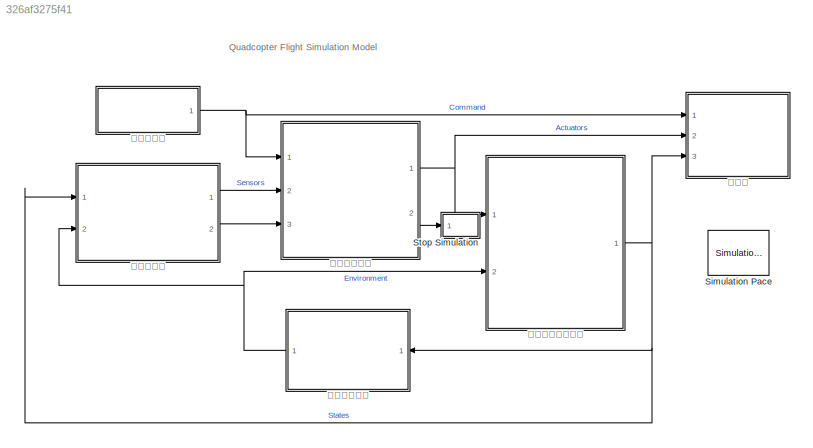
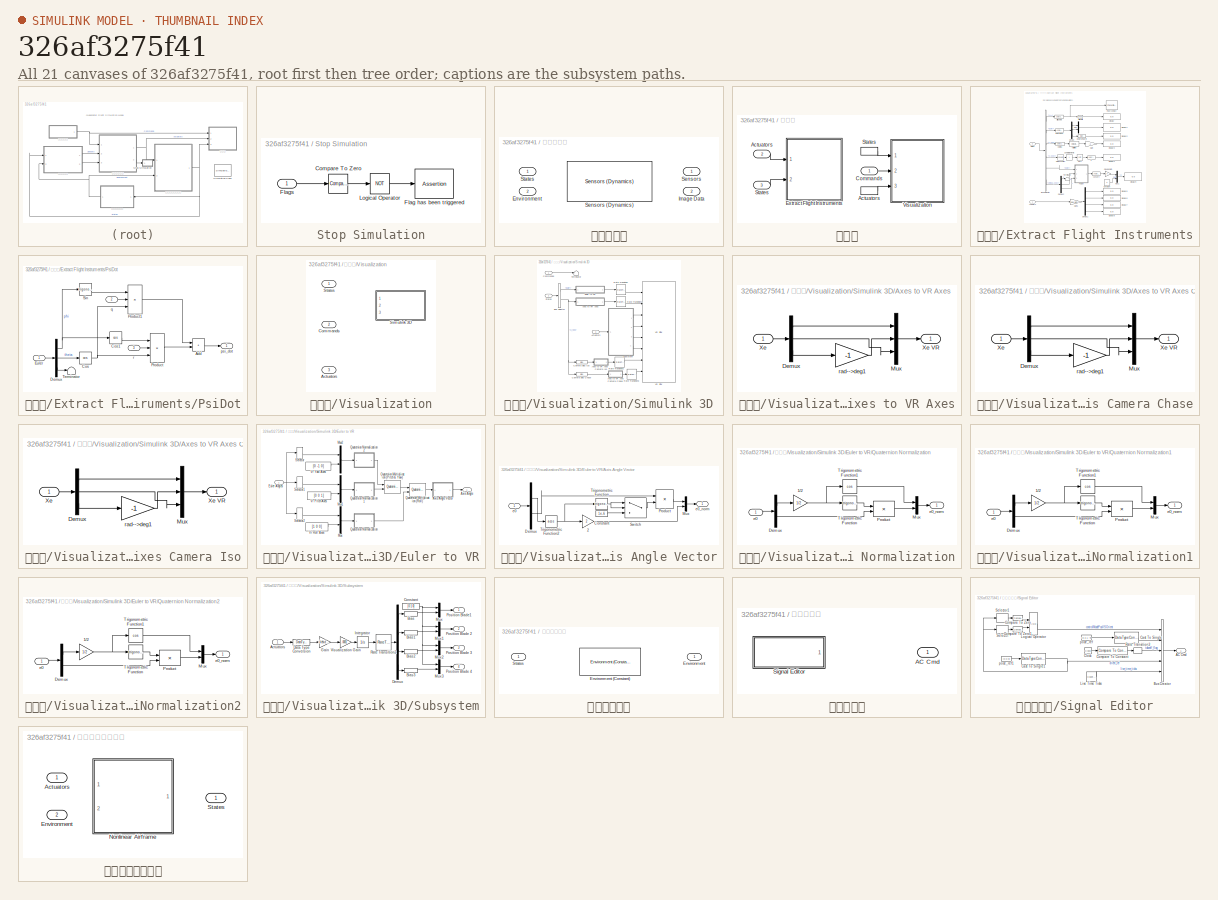
[diagram: thumbnail index - all 21 canvases of the model, root first then tree order]
MODEL slx_326af3275f41
KIND model
CONFIG AbsTol = auto
CONFIG EnableMultiTasking = on
CONFIG FixedStep = Ts
CONFIG MaxStep = auto
CONFIG MinStep = auto
CONFIG RelTol = 1e-3
CONFIG SampleTimeConstraint = Unconstrained
CONFIG SolverName = ode3
CONFIG StartTime = 0
CONFIG StopTime = 60
BLOCK [Reference] Simulation Pace  REF=aerolibanimutils/Simulation Pace
  AttributesFormatString = %<SimulationPace> sec/sec
  Commented = on
  Ports = []
  SourceBlock = aerolibanimutils/Simulation Pace
  SourceProductBaseCode = AE
  SourceType = Simulation Pace
BLOCK [SubSystem] Stop Simulation
  Ports = [1]
  RequestExecContextInheritance = off
BLOCK [Reference] Stop Simulation/Compare To Zero  REF=simulink/Logic and Bit
Operations/Compare
To Zero
  Ports = [1, 1]
  SourceBlock = simulink/Logic and Bit\nOperations/Compare\nTo Zero
  SourceProductBaseCode = SL
  SourceType = Compare To Zero
BLOCK [Assertion] Stop Simulation/Flag has been triggered
BLOCK [Inport] Stop Simulation/Flags
  OutDataTypeStr = uint8
BLOCK [Logic] Stop Simulation/Logical Operator
  AllPortsSameDT = off
  Operator = NOT
  OutDataTypeStr = boolean
  Ports = [1, 1]
BLOCK [SubSystem] 传感器数据
  Ports = [2, 2]
  RequestExecContextInheritance = off
  Variant = on
BLOCK [Inport] 传感器数据/Environment
  Port = 2
BLOCK [Outport] 传感器数据/Image Data
  Port = 2
  VectorParamsAs1DForOutWhenUnconnected = off
BLOCK [Outport] 传感器数据/Sensors
  VectorParamsAs1DForOutWhenUnconnected = off
BLOCK [Reference] 传感器数据/Sensors (Dynamics)  REF=sensorsLibrary/Sensors (Dynamics)
  Ports = [2, 2]
  SourceBlock = sensorsLibrary/Sensors (Dynamics)
BLOCK [Inport] 传感器数据/States
BLOCK [SubSystem] 可视化
  Ports = [3]
  RequestExecContextInheritance = off
BLOCK [Inport] 可视化/Actuators
  Port = 2
BLOCK [InportShadow] 可视化/Actuators 
  Port = 2
BLOCK [Inport] 可视化/Commands
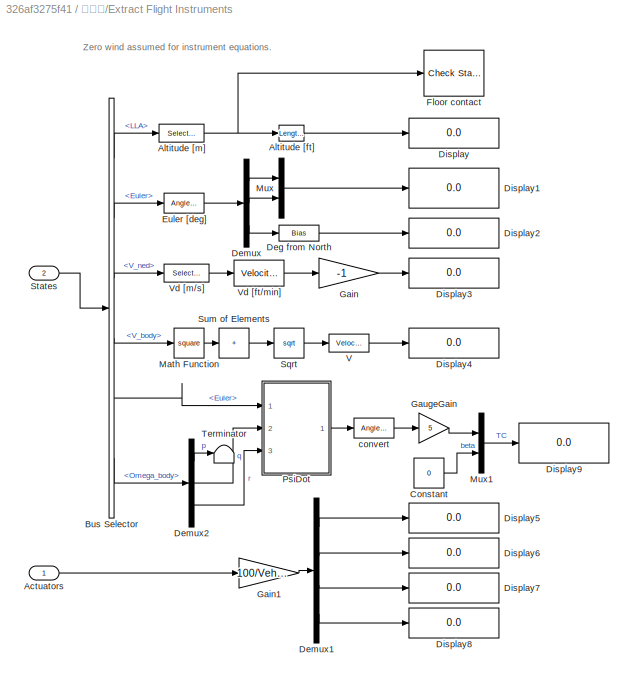
BLOCK [SubSystem] 可视化/Extract Flight Instruments
  Ports = [2]
  RequestExecContextInheritance = off
BLOCK [Inport] 可视化/Extract Flight Instruments/Actuators
BLOCK [Reference] 可视化/Extract Flight Instruments/Altitude [ft]  REF=aerolibconvert2/Length Conversion
  Ports = [1, 1]
  SourceBlock = aerolibconvert2/Length Conversion
  SourceProductBaseCode = AE
  SourceType = Length Conversion
BLOCK [Selector] 可视化/Extract Flight Instruments/Altitude [m]
  IndexOptions = Index vector (dialog)
  Indices = [3]
  InputPortWidth = 3
  OutputSizes = 1
  Ports = [1, 1]
BLOCK [BusSelector] 可视化/Extract Flight Instruments/Bus Selector
  OutputSignals = LLA,Euler,V_ned,V_body,Euler,Omega_body
  Ports = [1, 6]
BLOCK [Constant] 可视化/Extract Flight Instruments/Constant
  Value = 0
BLOCK [Bias] 可视化/Extract Flight Instruments/Deg from North
  Bias = Vehicle.PositionOnEarth.FlatEarthToLLA.xAxis
  SaturateOnIntegerOverflow = off
BLOCK [Demux] 可视化/Extract Flight Instruments/Demux
  Outputs = 3
  Ports = [1, 3]
BLOCK [Demux] 可视化/Extract Flight Instruments/Demux1
  Ports = [1, 4]
BLOCK [Demux] 可视化/Extract Flight Instruments/Demux2
  Outputs = 3
  Ports = [1, 3]
BLOCK [Display] 可视化/Extract Flight Instruments/Display
  Decimation = 1
  Ports = [1]
BLOCK [Display] 可视化/Extract Flight Instruments/Display1
  Decimation = 1
  Ports = [1]
BLOCK [Display] 可视化/Extract Flight Instruments/Display2
  Decimation = 1
  Ports = [1]
BLOCK [Display] 可视化/Extract Flight Instruments/Display3
  Decimation = 1
  Ports = [1]
BLOCK [Display] 可视化/Extract Flight Instruments/Display4
  Decimation = 1
  Ports = [1]
BLOCK [Display] 可视化/Extract Flight Instruments/Display5
  Decimation = 1
  Ports = [1]
BLOCK [Display] 可视化/Extract Flight Instruments/Display6
  Decimation = 1
  Ports = [1]
BLOCK [Display] 可视化/Extract Flight Instruments/Display7
  Decimation = 1
  Ports = [1]
BLOCK [Display] 可视化/Extract Flight Instruments/Display8
  Decimation = 1
  Ports = [1]
BLOCK [Display] 可视化/Extract Flight Instruments/Display9
  Decimation = 1
  Ports = [1]
BLOCK [Reference] 可视化/Extract Flight Instruments/Euler [deg]  REF=aerolibconvert2/Angle Conversion
  Ports = [1, 1]
  SourceBlock = aerolibconvert2/Angle Conversion
  SourceProductBaseCode = AE
  SourceType = Angle Conversion
BLOCK [Reference] 可视化/Extract Flight Instruments/Floor contact  REF=simulink/Model
Verification/Check Static 
Lower Bound
  Description = init.posLLA(3) <= u
  Ports = [1]
  SourceBlock = simulink/Model\nVerification/Check Static \nLower Bound
  SourceProductBaseCode = SL
  SourceType = Checks_SMin
BLOCK [Gain] 可视化/Extract Flight Instruments/Gain
  Gain = -1
BLOCK [Gain] 可视化/Extract Flight Instruments/Gain1
  Gain = 100/Vehicle.Motor.maxLimit*[1 -1 1 -1]
BLOCK [Gain] 可视化/Extract Flight Instruments/GaugeGain
  Gain = 5
BLOCK [Math] 可视化/Extract Flight Instruments/Math Function
  Operator = square
  Ports = [1, 1]
  SignedPower = on
BLOCK [Mux] 可视化/Extract Flight Instruments/Mux
  DisplayOption = bar
  Inputs = 2
  Ports = [2, 1]
BLOCK [Mux] 可视化/Extract Flight Instruments/Mux1
  DisplayOption = bar
  Inputs = 2
  Ports = [2, 1]
BLOCK [SubSystem] 可视化/Extract Flight Instruments/PsiDot
  Ports = [3, 1]
  RequestExecContextInheritance = off
BLOCK [Sum] 可视化/Extract Flight Instruments/PsiDot/Add
  IconShape = rectangular
  Ports = [2, 1]
BLOCK [Trigonometry] 可视化/Extract Flight Instruments/PsiDot/Cos
  Operator = cos
  Ports = [1, 1]
BLOCK [Trigonometry] 可视化/Extract Flight Instruments/PsiDot/Cos1
  Operator = cos
  Ports = [1, 1]
BLOCK [Demux] 可视化/Extract Flight Instruments/PsiDot/Demux
  Outputs = 3
  Ports = [1, 3]
BLOCK [Inport] 可视化/Extract Flight Instruments/PsiDot/Euler
BLOCK [Product] 可视化/Extract Flight Instruments/PsiDot/Product
  Inputs = **/
  Ports = [3, 1]
BLOCK [Product] 可视化/Extract Flight Instruments/PsiDot/Product1
  Inputs = **/
  Ports = [3, 1]
BLOCK [Trigonometry] 可视化/Extract Flight Instruments/PsiDot/Sin
  Ports = [1, 1]
BLOCK [Terminator] 可视化/Extract Flight Instruments/PsiDot/Terminator
BLOCK [Outport] 可视化/Extract Flight Instruments/PsiDot/psi_dot
BLOCK [Inport] 可视化/Extract Flight Instruments/PsiDot/q
  Port = 2
BLOCK [Inport] 可视化/Extract Flight Instruments/PsiDot/r
  Port = 3
BLOCK [Sqrt] 可视化/Extract Flight Instruments/Sqrt
BLOCK [Inport] 可视化/Extract Flight Instruments/States
  Port = 2
BLOCK [Sum] 可视化/Extract Flight Instruments/Sum of Elements
  IconShape = rectangular
  Inputs = +
  Ports = [1, 1]
BLOCK [Terminator] 可视化/Extract Flight Instruments/Terminator
BLOCK [Reference] 可视化/Extract Flight Instruments/V  REF=aerolibconvert2/Velocity Conversion
  Ports = [1, 1]
  SourceBlock = aerolibconvert2/Velocity Conversion
  SourceProductBaseCode = AE
  SourceType = Velocity Conversion
BLOCK [Reference] 可视化/Extract Flight Instruments/Vd [ft//min]  REF=aerolibconvert2/Velocity Conversion
  Ports = [1, 1]
  SourceBlock = aerolibconvert2/Velocity Conversion
  SourceProductBaseCode = AE
  SourceType = Velocity Conversion
BLOCK [Selector] 可视化/Extract Flight Instruments/Vd [m//s]
  IndexOptions = Index vector (dialog)
  Indices = [3]
  InputPortWidth = 3
  OutputSizes = 1
  Ports = [1, 1]
BLOCK [Reference] 可视化/Extract Flight Instruments/convert  REF=aerolibconvert2/Angle Conversion
  Ports = [1, 1]
  SourceBlock = aerolibconvert2/Angle Conversion
  SourceProductBaseCode = AE
  SourceType = Angle Conversion
BLOCK [Inport] 可视化/States
  Port = 3
BLOCK [InportShadow] 可视化/States 
  Port = 3
BLOCK [SubSystem] 可视化/Visualization
  Ports = [3]
  RequestExecContextInheritance = off
  Variant = on
BLOCK [Inport] 可视化/Visualization/Actuators
  Port = 3
BLOCK [Inport] 可视化/Visualization/Commands
  OutDataTypeStr = Bus: CommandBus
  Port = 2
BLOCK [SubSystem] 可视化/Visualization/Simulink 3D
  Ports = [3]
  RequestExecContextInheritance = off
  VariantControl = VSS_VISUALIZATION_SL3D
BLOCK [Inport] 可视化/Visualization/Simulink 3D/Actuators
  Port = 3
BLOCK [SubSystem] 可视化/Visualization/Simulink 3D/Axes to VR Axes
  Ports = [1, 1]
  RequestExecContextInheritance = off
BLOCK [SubSystem] 可视化/Visualization/Simulink 3D/Axes to VR Axes Camera Chase
  Ports = [1, 1]
  RequestExecContextInheritance = off
BLOCK [Demux] 可视化/Visualization/Simulink 3D/Axes to VR Axes Camera Chase/Demux
  DisplayOption = none
  Outputs = 3
  Ports = [1, 3]
BLOCK [Mux] 可视化/Visualization/Simulink 3D/Axes to VR Axes Camera Chase/Mux
  DisplayOption = bar
  Inputs = 3
  Ports = [3, 1]
BLOCK [Inport] 可视化/Visualization/Simulink 3D/Axes to VR Axes Camera Chase/Xe
BLOCK [Outport] 可视化/Visualization/Simulink 3D/Axes to VR Axes Camera Chase/Xe VR
  VectorParamsAs1DForOutWhenUnconnected = off
BLOCK [Gain] 可视化/Visualization/Simulink 3D/Axes to VR Axes Camera Chase/rad-->deg1
  Gain = -1
  NameLocation = top
  OutDataTypeStr = Inherit: Same as input
  ParamDataTypeStr = Inherit: Same as input
  SaturateOnIntegerOverflow = on
BLOCK [SubSystem] 可视化/Visualization/Simulink 3D/Axes to VR Axes Camera Iso
  Ports = [1, 1]
  RequestExecContextInheritance = off
BLOCK [Demux] 可视化/Visualization/Simulink 3D/Axes to VR Axes Camera Iso/Demux
  DisplayOption = none
  Outputs = 3
  Ports = [1, 3]
BLOCK [Mux] 可视化/Visualization/Simulink 3D/Axes to VR Axes Camera Iso/Mux
  DisplayOption = bar
  Inputs = 3
  Ports = [3, 1]
BLOCK [Inport] 可视化/Visualization/Simulink 3D/Axes to VR Axes Camera Iso/Xe
BLOCK [Outport] 可视化/Visualization/Simulink 3D/Axes to VR Axes Camera Iso/Xe VR
  VectorParamsAs1DForOutWhenUnconnected = off
BLOCK [Gain] 可视化/Visualization/Simulink 3D/Axes to VR Axes Camera Iso/rad-->deg1
  Gain = -1
  NameLocation = top
  OutDataTypeStr = Inherit: Same as input
  ParamDataTypeStr = Inherit: Same as input
  SaturateOnIntegerOverflow = on
BLOCK [Demux] 可视化/Visualization/Simulink 3D/Axes to VR Axes/Demux
  DisplayOption = none
  Outputs = 3
  Ports = [1, 3]
BLOCK [Mux] 可视化/Visualization/Simulink 3D/Axes to VR Axes/Mux
  DisplayOption = bar
  Inputs = 3
  Ports = [3, 1]
BLOCK [Inport] 可视化/Visualization/Simulink 3D/Axes to VR Axes/Xe
BLOCK [Outport] 可视化/Visualization/Simulink 3D/Axes to VR Axes/Xe VR
  VectorParamsAs1DForOutWhenUnconnected = off
BLOCK [Gain] 可视化/Visualization/Simulink 3D/Axes to VR Axes/rad-->deg1
  Gain = -1
  NameLocation = top
  OutDataTypeStr = Inherit: Same as input
  ParamDataTypeStr = Inherit: Same as input
  SaturateOnIntegerOverflow = on
BLOCK [BusSelector] 可视化/Visualization/Simulink 3D/Bus Selector
  OutputSignals = Euler,X_ned
  Ports = [1, 2]
BLOCK [Bias] 可视化/Visualization/Simulink 3D/Camera bias Chase
  Bias = [-4 0 -.9558]'
  SaturateOnIntegerOverflow = off
BLOCK [Bias] 可视化/Visualization/Simulink 3D/Camera bias Iso
  Bias = [0.9009 .99 -.6247]'
  SaturateOnIntegerOverflow = off
BLOCK [Inport] 可视化/Visualization/Simulink 3D/Commands
BLOCK [SubSystem] 可视化/Visualization/Simulink 3D/Euler to VR
  Ports = [1, 1]
  RequestExecContextInheritance = off
BLOCK [Outport] 可视化/Visualization/Simulink 3D/Euler to VR/Axis Angle
  VectorParamsAs1DForOutWhenUnconnected = off
BLOCK [SubSystem] 可视化/Visualization/Simulink 3D/Euler to VR/Axis Angle Vector
  Ports = [1, 1]
  RequestExecContextInheritance = off
BLOCK [Gain] 可视化/Visualization/Simulink 3D/Euler to VR/Axis Angle Vector/2
  Gain = 2
  OutDataTypeStr = Inherit: Same as input
  ParamDataTypeStr = Inherit: Same as input
  SaturateOnIntegerOverflow = on
BLOCK [Constant] 可视化/Visualization/Simulink 3D/Euler to VR/Axis Angle Vector/Constant
  Value = 1e-6
BLOCK [Demux] 可视化/Visualization/Simulink 3D/Euler to VR/Axis Angle Vector/Demux
  DisplayOption = none
  Outputs = [1 3 ]
  Ports = [1, 2]
BLOCK [Mux] 可视化/Visualization/Simulink 3D/Euler to VR/Axis Angle Vector/Mux
  DisplayOption = bar
  Inputs = 2
  Ports = [2, 1]
BLOCK [Product] 可视化/Visualization/Simulink 3D/Euler to VR/Axis Angle Vector/Product
  InputSameDT = on
  Inputs = */
  OutDataTypeStr = Inherit: Same as first input
  Ports = [2, 1]
  SaturateOnIntegerOverflow = on
BLOCK [Switch] 可视化/Visualization/Simulink 3D/Euler to VR/Axis Angle Vector/Switch
  Criteria = u2 ~= 0
  InputSameDT = off
  SaturateOnIntegerOverflow = off
BLOCK [Trigonometry] 可视化/Visualization/Simulink 3D/Euler to VR/Axis Angle Vector/Trigonometric Function
  Ports = [1, 1]
BLOCK [Trigonometry] 可视化/Visualization/Simulink 3D/Euler to VR/Axis Angle Vector/Trigonometric Function2
  Operator = acos
  Ports = [1, 1]
BLOCK [Inport] 可视化/Visualization/Simulink 3D/Euler to VR/Axis Angle Vector/e0
BLOCK [Outport] 可视化/Visualization/Simulink 3D/Euler to VR/Axis Angle Vector/e0_norm
  VectorParamsAs1DForOutWhenUnconnected = off
BLOCK [Inport] 可视化/Visualization/Simulink 3D/Euler to VR/Euler Angles
BLOCK [Mux] 可视化/Visualization/Simulink 3D/Euler to VR/Mux
  DisplayOption = bar
  Inputs = 2
  Ports = [2, 1]
BLOCK [Mux] 可视化/Visualization/Simulink 3D/Euler to VR/Mux1
  DisplayOption = bar
  Inputs = 2
  Ports = [2, 1]
BLOCK [Mux] 可视化/Visualization/Simulink 3D/Euler to VR/Mux2
  DisplayOption = bar
  Inputs = 2
  Ports = [2, 1]
BLOCK [Reference] 可视化/Visualization/Simulink 3D/Euler to VR/Quaternion Multiplication (Pitch & Yaw)  REF=aerolibutil/Quaternion
Multiplication
  Ports = [2, 1]
  SourceBlock = aerolibutil/Quaternion\nMultiplication
  SourceProductBaseCode = AE
  SourceType = Quaternion Multiplication
BLOCK [Reference] 可视化/Visualization/Simulink 3D/Euler to VR/Quaternion Multiplication (Roll)  REF=aerolibutil/Quaternion
Multiplication
  Ports = [2, 1]
  SourceBlock = aerolibutil/Quaternion\nMultiplication
  SourceProductBaseCode = AE
  SourceType = Quaternion Multiplication
BLOCK [SubSystem] 可视化/Visualization/Simulink 3D/Euler to VR/Quaternion Normalization
  Ports = [1, 1]
  RequestExecContextInheritance = off
BLOCK [Gain] 可视化/Visualization/Simulink 3D/Euler to VR/Quaternion Normalization/1//2
  Gain = 1/2
  OutDataTypeStr = Inherit: Same as input
  ParamDataTypeStr = Inherit: Same as input
  SaturateOnIntegerOverflow = on
BLOCK [Demux] 可视化/Visualization/Simulink 3D/Euler to VR/Quaternion Normalization/Demux
  DisplayOption = none
  Outputs = [1 3]
  Ports = [1, 2]
BLOCK [Mux] 可视化/Visualization/Simulink 3D/Euler to VR/Quaternion Normalization/Mux
  DisplayOption = bar
  Inputs = 2
  Ports = [2, 1]
BLOCK [Product] 可视化/Visualization/Simulink 3D/Euler to VR/Quaternion Normalization/Product
  InputSameDT = on
  OutDataTypeStr = Inherit: Same as first input
  Ports = [2, 1]
  SaturateOnIntegerOverflow = on
BLOCK [Trigonometry] 可视化/Visualization/Simulink 3D/Euler to VR/Quaternion Normalization/Trigonometric Function
  Ports = [1, 1]
BLOCK [Trigonometry] 可视化/Visualization/Simulink 3D/Euler to VR/Quaternion Normalization/Trigonometric Function1
  Operator = cos
  Ports = [1, 1]
BLOCK [Inport] 可视化/Visualization/Simulink 3D/Euler to VR/Quaternion Normalization/e0
BLOCK [Outport] 可视化/Visualization/Simulink 3D/Euler to VR/Quaternion Normalization/e0_norm
  VectorParamsAs1DForOutWhenUnconnected = off
BLOCK [SubSystem] 可视化/Visualization/Simulink 3D/Euler to VR/Quaternion Normalization1
  Ports = [1, 1]
  RequestExecContextInheritance = off
BLOCK [Gain] 可视化/Visualization/Simulink 3D/Euler to VR/Quaternion Normalization1/1//2
  Gain = 1/2
  OutDataTypeStr = Inherit: Same as input
  ParamDataTypeStr = Inherit: Same as input
  SaturateOnIntegerOverflow = on
BLOCK [Demux] 可视化/Visualization/Simulink 3D/Euler to VR/Quaternion Normalization1/Demux
  DisplayOption = none
  Outputs = [1 3]
  Ports = [1, 2]
BLOCK [Mux] 可视化/Visualization/Simulink 3D/Euler to VR/Quaternion Normalization1/Mux
  DisplayOption = bar
  Inputs = 2
  Ports = [2, 1]
BLOCK [Product] 可视化/Visualization/Simulink 3D/Euler to VR/Quaternion Normalization1/Product
  InputSameDT = on
  OutDataTypeStr = Inherit: Same as first input
  Ports = [2, 1]
  SaturateOnIntegerOverflow = on
BLOCK [Trigonometry] 可视化/Visualization/Simulink 3D/Euler to VR/Quaternion Normalization1/Trigonometric Function
  Ports = [1, 1]
BLOCK [Trigonometry] 可视化/Visualization/Simulink 3D/Euler to VR/Quaternion Normalization1/Trigonometric Function1
  Operator = cos
  Ports = [1, 1]
BLOCK [Inport] 可视化/Visualization/Simulink 3D/Euler to VR/Quaternion Normalization1/e0
BLOCK [Outport] 可视化/Visualization/Simulink 3D/Euler to VR/Quaternion Normalization1/e0_norm
  VectorParamsAs1DForOutWhenUnconnected = off
BLOCK [SubSystem] 可视化/Visualization/Simulink 3D/Euler to VR/Quaternion Normalization2
  Ports = [1, 1]
  RequestExecContextInheritance = off
BLOCK [Gain] 可视化/Visualization/Simulink 3D/Euler to VR/Quaternion Normalization2/1//2
  Gain = 1/2
  OutDataTypeStr = Inherit: Same as input
  ParamDataTypeStr = Inherit: Same as input
  SaturateOnIntegerOverflow = on
BLOCK [Demux] 可视化/Visualization/Simulink 3D/Euler to VR/Quaternion Normalization2/Demux
  DisplayOption = none
  Outputs = [1 3]
  Ports = [1, 2]
BLOCK [Mux] 可视化/Visualization/Simulink 3D/Euler to VR/Quaternion Normalization2/Mux
  DisplayOption = bar
  Inputs = 2
  Ports = [2, 1]
BLOCK [Product] 可视化/Visualization/Simulink 3D/Euler to VR/Quaternion Normalization2/Product
  InputSameDT = on
  OutDataTypeStr = Inherit: Same as first input
  Ports = [2, 1]
  SaturateOnIntegerOverflow = on
BLOCK [Trigonometry] 可视化/Visualization/Simulink 3D/Euler to VR/Quaternion Normalization2/Trigonometric Function
  Ports = [1, 1]
BLOCK [Trigonometry] 可视化/Visualization/Simulink 3D/Euler to VR/Quaternion Normalization2/Trigonometric Function1
  Operator = cos
  Ports = [1, 1]
BLOCK [Inport] 可视化/Visualization/Simulink 3D/Euler to VR/Quaternion Normalization2/e0
BLOCK [Outport] 可视化/Visualization/Simulink 3D/Euler to VR/Quaternion Normalization2/e0_norm
  VectorParamsAs1DForOutWhenUnconnected = off
BLOCK [Selector] 可视化/Visualization/Simulink 3D/Euler to VR/Selector
  IndexOptions = Index vector (dialog)
  Indices = [3]
  InputPortWidth = 3
  OutputSizes = 1
  Ports = [1, 1]
BLOCK [Selector] 可视化/Visualization/Simulink 3D/Euler to VR/Selector1
  IndexOptions = Index vector (dialog)
  Indices = [2]
  InputPortWidth = 3
  OutputSizes = 1
  Ports = [1, 1]
BLOCK [Selector] 可视化/Visualization/Simulink 3D/Euler to VR/Selector2
  IndexOptions = Index vector (dialog)
  Indices = [1]
  InputPortWidth = 3
  OutputSizes = 1
  Ports = [1, 1]
BLOCK [Constant] 可视化/Visualization/Simulink 3D/Euler to VR/Vr Pitch Axes
  NameLocation = top
  Value = [0 0 1]
BLOCK [Constant] 可视化/Visualization/Simulink 3D/Euler to VR/Vr Roll Axes
  NameLocation = top
  Value = [1 0 0]
BLOCK [Constant] 可视化/Visualization/Simulink 3D/Euler to VR/Vr Yaw Axes
  Value = [0 -1 0]
BLOCK [RateTransition] 可视化/Visualization/Simulink 3D/Rate Transition
BLOCK [RateTransition] 可视化/Visualization/Simulink 3D/Rate Transition1
BLOCK [RateTransition] 可视化/Visualization/Simulink 3D/Rate Transition2
BLOCK [RateTransition] 可视化/Visualization/Simulink 3D/Rate Transition3
BLOCK [Inport] 可视化/Visualization/Simulink 3D/States
  Port = 2
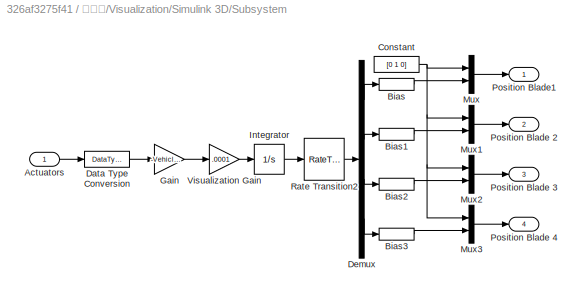
BLOCK [SubSystem] 可视化/Visualization/Simulink 3D/Subsystem
  Ports = [1, 4]
  RequestExecContextInheritance = off
BLOCK [Inport] 可视化/Visualization/Simulink 3D/Subsystem/Actuators
BLOCK [Bias] 可视化/Visualization/Simulink 3D/Subsystem/Bias
  Bias = .1
  SaturateOnIntegerOverflow = off
BLOCK [Bias] 可视化/Visualization/Simulink 3D/Subsystem/Bias1
  Bias = -.3
  SaturateOnIntegerOverflow = off
BLOCK [Bias] 可视化/Visualization/Simulink 3D/Subsystem/Bias2
  Bias = .5
  SaturateOnIntegerOverflow = off
BLOCK [Bias] 可视化/Visualization/Simulink 3D/Subsystem/Bias3
  Bias = .7
  SaturateOnIntegerOverflow = off
BLOCK [Constant] 可视化/Visualization/Simulink 3D/Subsystem/Constant
  Value = [0 1 0]
BLOCK [DataTypeConversion] 可视化/Visualization/Simulink 3D/Subsystem/Data Type Conversion
  OutDataTypeStr = double
  RndMeth = Floor
  SaturateOnIntegerOverflow = off
BLOCK [Demux] 可视化/Visualization/Simulink 3D/Subsystem/Demux
  Ports = [1, 4]
BLOCK [Gain] 可视化/Visualization/Simulink 3D/Subsystem/Gain
  Gain = -Vehicle.Motor.commandToW2Gain
BLOCK [Integrator] 可视化/Visualization/Simulink 3D/Subsystem/Integrator
  InitialCondition = [.1  .2 -.3 -.4]
  Ports = [1, 1]
  WrapState = on
  WrappedStateLowerValue = -2*pi
  WrappedStateUpperValue = 2*pi
BLOCK [Mux] 可视化/Visualization/Simulink 3D/Subsystem/Mux
  DisplayOption = bar
  Inputs = 2
  Ports = [2, 1]
BLOCK [Mux] 可视化/Visualization/Simulink 3D/Subsystem/Mux1
  DisplayOption = bar
  Inputs = 2
  Ports = [2, 1]
BLOCK [Mux] 可视化/Visualization/Simulink 3D/Subsystem/Mux2
  DisplayOption = bar
  Inputs = 2
  Ports = [2, 1]
BLOCK [Mux] 可视化/Visualization/Simulink 3D/Subsystem/Mux3
  DisplayOption = bar
  Inputs = 2
  Ports = [2, 1]
BLOCK [Outport] 可视化/Visualization/Simulink 3D/Subsystem/Position Blade 2
  Port = 2
  VectorParamsAs1DForOutWhenUnconnected = off
BLOCK [Outport] 可视化/Visualization/Simulink 3D/Subsystem/Position Blade 3
  Port = 3
  VectorParamsAs1DForOutWhenUnconnected = off
BLOCK [Outport] 可视化/Visualization/Simulink 3D/Subsystem/Position Blade 4
  Port = 4
  VectorParamsAs1DForOutWhenUnconnected = off
BLOCK [Outport] 可视化/Visualization/Simulink 3D/Subsystem/Position Blade1
  VectorParamsAs1DForOutWhenUnconnected = off
BLOCK [RateTransition] 可视化/Visualization/Simulink 3D/Subsystem/Rate Transition2
BLOCK [Gain] 可视化/Visualization/Simulink 3D/Subsystem/Visualization Gain
  Gain = .0001
BLOCK [Terminator] 可视化/Visualization/Simulink 3D/Terminator
BLOCK [Reference] 可视化/Visualization/Simulink 3D/VR Sink  REF=vrlib/VR Sink
  InstantiateOnLoad = on
  Ports = [8]
  SourceBlock = vrlib/VR Sink
  SourceProductBaseCode = SL
  SourceType = Virtual Reality Sink
BLOCK [Inport] 可视化/Visualization/States
  OutDataTypeStr = Bus: StatesBus
BLOCK [SubSystem] 环境参数设置
  Ports = [1, 1]
  RequestExecContextInheritance = off
  Variant = on
BLOCK [Outport] 环境参数设置/Environment
  OutDataTypeStr = Bus: EnvironmentBus
  VectorParamsAs1DForOutWhenUnconnected = off
BLOCK [Reference] 环境参数设置/Environment (Constant)  REF=environmentLibrary/Environment (Constant)
  Ports = [1, 1]
  SourceBlock = environmentLibrary/Environment (Constant)
  SourceType = SubSystem
BLOCK [Inport] 环境参数设置/States
  OutDataTypeStr = Bus: StatesBus
BLOCK [SubSystem] 目标点设置
  Ports = [0, 1]
  RequestExecContextInheritance = off
  Variant = on
BLOCK [Outport] 目标点设置/AC Cmd
  OutDataTypeStr = Bus: CommandBus
  VectorParamsAs1DForOutWhenUnconnected = off
BLOCK [SubSystem] 目标点设置/Signal Editor
  Ports = [0, 1]
  RequestExecContextInheritance = off
  VariantControl = VSS_COMMAND_SIGEDIT
BLOCK [Outport] 目标点设置/Signal Editor/AC Cmd
  OutDataTypeStr = Bus: CommandBus
  VectorParamsAs1DForOutWhenUnconnected = off
BLOCK [BusCreator] 目标点设置/Signal Editor/Bus Creator
  DisplayOption = bar
  InheritFromInputs = off
  Inputs = 5
  NonVirtualBus = on
  OutDataTypeStr = Bus: CommandBus
  Ports = [5, 1]
BLOCK [DataTypeConversion] 目标点设置/Signal Editor/Cast To Single
  OutDataTypeStr = single
  RndMeth = Floor
  SaturateOnIntegerOverflow = off
BLOCK [DataTypeConversion] 目标点设置/Signal Editor/Cast To Single1
  OutDataTypeStr = single
  RndMeth = Floor
  SaturateOnIntegerOverflow = off
BLOCK [Clock] 目标点设置/Signal Editor/Clock
BLOCK [Reference] 目标点设置/Signal Editor/Compare To Constant  REF=simulink/Logic and Bit
Operations/Compare
To Constant
  Ports = [1, 1]
  SourceBlock = simulink/Logic and Bit\nOperations/Compare\nTo Constant
  SourceProductBaseCode = SL
  SourceType = Compare To Constant
BLOCK [Reference] 目标点设置/Signal Editor/Compare To Zero  REF=simulink/Logic and Bit
Operations/Compare
To Zero
  Ports = [1, 1]
  SourceBlock = simulink/Logic and Bit\nOperations/Compare\nTo Zero
  SourceProductBaseCode = SL
  SourceType = Compare To Zero
BLOCK [Reference] 目标点设置/Signal Editor/Compare To Zero1  REF=simulink/Logic and Bit
Operations/Compare
To Zero
  Ports = [1, 1]
  SourceBlock = simulink/Logic and Bit\nOperations/Compare\nTo Zero
  SourceProductBaseCode = SL
  SourceType = Compare To Zero
BLOCK [Reference] 目标点设置/Signal Editor/Live Time Ticks  REF=simulink/Sources/Counter
Free-Running
  Ports = [0, 1]
  SourceBlock = simulink/Sources/Counter\nFree-Running
  SourceProductBaseCode = SL
  SourceType = Counter Free-Running
BLOCK [Logic] 目标点设置/Signal Editor/Logical Operator
  AllPortsSameDT = off
  OutDataTypeStr = boolean
  Ports = [2, 1]
BLOCK [RateTransition] 目标点设置/Signal Editor/Rate Transition3
  OutPortSampleTime = Ts
BLOCK [Selector] 目标点设置/Signal Editor/Selector
  IndexOptions = Index vector (dialog)
  Indices = 2
  InputPortWidth = 3
  OutputSizes = 1
  Ports = [1, 1]
BLOCK [Selector] 目标点设置/Signal Editor/Selector1
  IndexOptions = Index vector (dialog)
  Indices = 3
  InputPortWidth = 3
  OutputSizes = 1
  Ports = [1, 1]
BLOCK [Constant] 目标点设置/Signal Editor/pose_ref
  Value = [0 2.1 -4]
BLOCK [Constant] 目标点设置/Signal Editor/pose_ref1
  Value = [0 0 0]
BLOCK [SubSystem] 非线性四旋翼模型
  Ports = [2, 1]
  RequestExecContextInheritance = off
  Variant = on
BLOCK [Inport] 非线性四旋翼模型/Actuators
BLOCK [Inport] 非线性四旋翼模型/Environment
  OutDataTypeStr = Bus: EnvironmentBus
  Port = 2
BLOCK [ModelReference] 非线性四旋翼模型/Nonlinear Airframe
  ModelNameDialog = nonlinearAirframe.slx
  ModelReferenceVersion = 5.1
  Ports = [2, 1]
  VariantControl = VSS_VEHICLE_NONLINEAR
BLOCK [Outport] 非线性四旋翼模型/States
  OutDataTypeStr = Bus: StatesBus
  VectorParamsAs1DForOutWhenUnconnected = off
BLOCK [ModelReference] 飞行控制系统
  ModelNameDialog = flightControlSystem.slx
  ModelReferenceVersion = 5.14
  Ports = [3, 2]
ANNOTATION (root): Quadcopter Flight Simulation Model
ANNOTATION 可视化/Extract Flight Instruments: Zero wind assumed for instrument equations.
LINE Stop Simulation/Compare To Zero:1 -> Stop Simulation/Logical Operator:1
LINE Stop Simulation/Flags:1 -> Stop Simulation/Compare To Zero:1
LINE Stop Simulation/Logical Operator:1 -> Stop Simulation/Flag has been triggered:1
LINE 传感器数据:1 -> 飞行控制系统:2
LINE 传感器数据:2 -> 飞行控制系统:3
LINE 可视化/Actuators :1 -> 可视化/Visualization:3
LINE 可视化/Actuators:1 -> 可视化/Extract Flight Instruments:1
LINE 可视化/Commands:1 -> 可视化/Visualization:2
LINE 可视化/Extract Flight Instruments/Actuators:1 -> 可视化/Extract Flight Instruments/Gain1:1
LINE 可视化/Extract Flight Instruments/Altitude [ft]:1 -> 可视化/Extract Flight Instruments/Display:1
NET 可视化/Extract Flight Instruments/Altitude [m]:1 -> 可视化/Extract Flight Instruments/Altitude [ft]:1, 可视化/Extract Flight Instruments/Floor contact:1
LINE 可视化/Extract Flight Instruments/Bus Selector:1 -> 可视化/Extract Flight Instruments/Altitude [m]:1
LINE 可视化/Extract Flight Instruments/Bus Selector:2 -> 可视化/Extract Flight Instruments/Euler [deg]:1
LINE 可视化/Extract Flight Instruments/Bus Selector:3 -> 可视化/Extract Flight Instruments/Vd [m//s]:1
LINE 可视化/Extract Flight Instruments/Bus Selector:4 -> 可视化/Extract Flight Instruments/Math Function:1
LINE 可视化/Extract Flight Instruments/Bus Selector:5 -> 可视化/Extract Flight Instruments/PsiDot:1
LINE 可视化/Extract Flight Instruments/Bus Selector:6 -> 可视化/Extract Flight Instruments/Demux2:1
LINE 可视化/Extract Flight Instruments/Constant:1 -> 可视化/Extract Flight Instruments/Mux1:2
LINE 可视化/Extract Flight Instruments/Deg from North:1 -> 可视化/Extract Flight Instruments/Display2:1
LINE 可视化/Extract Flight Instruments/Demux1:1 -> 可视化/Extract Flight Instruments/Display5:1
LINE 可视化/Extract Flight Instruments/Demux1:2 -> 可视化/Extract Flight Instruments/Display6:1
LINE 可视化/Extract Flight Instruments/Demux1:3 -> 可视化/Extract Flight Instruments/Display7:1
LINE 可视化/Extract Flight Instruments/Demux1:4 -> 可视化/Extract Flight Instruments/Display8:1
LINE 可视化/Extract Flight Instruments/Demux2:1 -> 可视化/Extract Flight Instruments/Terminator:1
LINE 可视化/Extract Flight Instruments/Demux2:2 -> 可视化/Extract Flight Instruments/PsiDot:2
LINE 可视化/Extract Flight Instruments/Demux2:3 -> 可视化/Extract Flight Instruments/PsiDot:3
LINE 可视化/Extract Flight Instruments/Demux:1 -> 可视化/Extract Flight Instruments/Mux:1
LINE 可视化/Extract Flight Instruments/Demux:2 -> 可视化/Extract Flight Instruments/Mux:2
LINE 可视化/Extract Flight Instruments/Demux:3 -> 可视化/Extract Flight Instruments/Deg from North:1
LINE 可视化/Extract Flight Instruments/Euler [deg]:1 -> 可视化/Extract Flight Instruments/Demux:1
LINE 可视化/Extract Flight Instruments/Gain1:1 -> 可视化/Extract Flight Instruments/Demux1:1
LINE 可视化/Extract Flight Instruments/Gain:1 -> 可视化/Extract Flight Instruments/Display3:1
LINE 可视化/Extract Flight Instruments/GaugeGain:1 -> 可视化/Extract Flight Instruments/Mux1:1
LINE 可视化/Extract Flight Instruments/Math Function:1 -> 可视化/Extract Flight Instruments/Sum of Elements:1
LINE 可视化/Extract Flight Instruments/Mux1:1 -> 可视化/Extract Flight Instruments/Display9:1
LINE 可视化/Extract Flight Instruments/Mux:1 -> 可视化/Extract Flight Instruments/Display1:1
LINE 可视化/Extract Flight Instruments/PsiDot/Add:1 -> 可视化/Extract Flight Instruments/PsiDot/psi_dot:1
LINE 可视化/Extract Flight Instruments/PsiDot/Cos1:1 -> 可视化/Extract Flight Instruments/PsiDot/Product:1
NET 可视化/Extract Flight Instruments/PsiDot/Cos:1 -> 可视化/Extract Flight Instruments/PsiDot/Product1:3, 可视化/Extract Flight Instruments/PsiDot/Product:3
NET 可视化/Extract Flight Instruments/PsiDot/Demux:1 -> 可视化/Extract Flight Instruments/PsiDot/Cos1:1, 可视化/Extract Flight Instruments/PsiDot/Sin:1
LINE 可视化/Extract Flight Instruments/PsiDot/Demux:2 -> 可视化/Extract Flight Instruments/PsiDot/Cos:1
LINE 可视化/Extract Flight Instruments/PsiDot/Demux:3 -> 可视化/Extract Flight Instruments/PsiDot/Terminator:1
LINE 可视化/Extract Flight Instruments/PsiDot/Euler:1 -> 可视化/Extract Flight Instruments/PsiDot/Demux:1
LINE 可视化/Extract Flight Instruments/PsiDot/Product1:1 -> 可视化/Extract Flight Instruments/PsiDot/Add:1
LINE 可视化/Extract Flight Instruments/PsiDot/Product:1 -> 可视化/Extract Flight Instruments/PsiDot/Add:2
LINE 可视化/Extract Flight Instruments/PsiDot/Sin:1 -> 可视化/Extract Flight Instruments/PsiDot/Product1:1
LINE 可视化/Extract Flight Instruments/PsiDot/q:1 -> 可视化/Extract Flight Instruments/PsiDot/Product1:2
LINE 可视化/Extract Flight Instruments/PsiDot/r:1 -> 可视化/Extract Flight Instruments/PsiDot/Product:2
LINE 可视化/Extract Flight Instruments/PsiDot:1 -> 可视化/Extract Flight Instruments/convert:1
LINE 可视化/Extract Flight Instruments/Sqrt:1 -> 可视化/Extract Flight Instruments/V:1
LINE 可视化/Extract Flight Instruments/States:1 -> 可视化/Extract Flight Instruments/Bus Selector:1
LINE 可视化/Extract Flight Instruments/Sum of Elements:1 -> 可视化/Extract Flight Instruments/Sqrt:1
LINE 可视化/Extract Flight Instruments/V:1 -> 可视化/Extract Flight Instruments/Display4:1
LINE 可视化/Extract Flight Instruments/Vd [ft//min]:1 -> 可视化/Extract Flight Instruments/Gain:1
LINE 可视化/Extract Flight Instruments/Vd [m//s]:1 -> 可视化/Extract Flight Instruments/Vd [ft//min]:1
LINE 可视化/Extract Flight Instruments/convert:1 -> 可视化/Extract Flight Instruments/GaugeGain:1
LINE 可视化/States :1 -> 可视化/Visualization:1
LINE 可视化/States:1 -> 可视化/Extract Flight Instruments:2
LINE 可视化/Visualization/Simulink 3D/Actuators:1 -> 可视化/Visualization/Simulink 3D/Subsystem:1
LINE 可视化/Visualization/Simulink 3D/Axes to VR Axes Camera Chase/Demux:1 -> 可视化/Visualization/Simulink 3D/Axes to VR Axes Camera Chase/Mux:1
LINE 可视化/Visualization/Simulink 3D/Axes to VR Axes Camera Chase/Demux:2 -> 可视化/Visualization/Simulink 3D/Axes to VR Axes Camera Chase/Mux:3
LINE 可视化/Visualization/Simulink 3D/Axes to VR Axes Camera Chase/Demux:3 -> 可视化/Visualization/Simulink 3D/Axes to VR Axes Camera Chase/rad-->deg1:1
LINE 可视化/Visualization/Simulink 3D/Axes to VR Axes Camera Chase/Mux:1 -> 可视化/Visualization/Simulink 3D/Axes to VR Axes Camera Chase/Xe VR:1
LINE 可视化/Visualization/Simulink 3D/Axes to VR Axes Camera Chase/Xe:1 -> 可视化/Visualization/Simulink 3D/Axes to VR Axes Camera Chase/Demux:1
LINE 可视化/Visualization/Simulink 3D/Axes to VR Axes Camera Chase/rad-->deg1:1 -> 可视化/Visualization/Simulink 3D/Axes to VR Axes Camera Chase/Mux:2
LINE 可视化/Visualization/Simulink 3D/Axes to VR Axes Camera Chase:1 -> 可视化/Visualization/Simulink 3D/Rate Transition3:1
LINE 可视化/Visualization/Simulink 3D/Axes to VR Axes Camera Iso/Demux:1 -> 可视化/Visualization/Simulink 3D/Axes to VR Axes Camera Iso/Mux:1
LINE 可视化/Visualization/Simulink 3D/Axes to VR Axes Camera Iso/Demux:2 -> 可视化/Visualization/Simulink 3D/Axes to VR Axes Camera Iso/Mux:3
LINE 可视化/Visualization/Simulink 3D/Axes to VR Axes Camera Iso/Demux:3 -> 可视化/Visualization/Simulink 3D/Axes to VR Axes Camera Iso/rad-->deg1:1
LINE 可视化/Visualization/Simulink 3D/Axes to VR Axes Camera Iso/Mux:1 -> 可视化/Visualization/Simulink 3D/Axes to VR Axes Camera Iso/Xe VR:1
LINE 可视化/Visualization/Simulink 3D/Axes to VR Axes Camera Iso/Xe:1 -> 可视化/Visualization/Simulink 3D/Axes to VR Axes Camera Iso/Demux:1
LINE 可视化/Visualization/Simulink 3D/Axes to VR Axes Camera Iso/rad-->deg1:1 -> 可视化/Visualization/Simulink 3D/Axes to VR Axes Camera Iso/Mux:2
LINE 可视化/Visualization/Simulink 3D/Axes to VR Axes Camera Iso:1 -> 可视化/Visualization/Simulink 3D/Rate Transition2:1
LINE 可视化/Visualization/Simulink 3D/Axes to VR Axes/Demux:1 -> 可视化/Visualization/Simulink 3D/Axes to VR Axes/Mux:1
LINE 可视化/Visualization/Simulink 3D/Axes to VR Axes/Demux:2 -> 可视化/Visualization/Simulink 3D/Axes to VR Axes/Mux:3
LINE 可视化/Visualization/Simulink 3D/Axes to VR Axes/Demux:3 -> 可视化/Visualization/Simulink 3D/Axes to VR Axes/rad-->deg1:1
LINE 可视化/Visualization/Simulink 3D/Axes to VR Axes/Mux:1 -> 可视化/Visualization/Simulink 3D/Axes to VR Axes/Xe VR:1
LINE 可视化/Visualization/Simulink 3D/Axes to VR Axes/Xe:1 -> 可视化/Visualization/Simulink 3D/Axes to VR Axes/Demux:1
LINE 可视化/Visualization/Simulink 3D/Axes to VR Axes/rad-->deg1:1 -> 可视化/Visualization/Simulink 3D/Axes to VR Axes/Mux:2
LINE 可视化/Visualization/Simulink 3D/Axes to VR Axes:1 -> 可视化/Visualization/Simulink 3D/Rate Transition1:1
LINE 可视化/Visualization/Simulink 3D/Bus Selector:1 -> 可视化/Visualization/Simulink 3D/Euler to VR:1
NET 可视化/Visualization/Simulink 3D/Bus Selector:2 -> 可视化/Visualization/Simulink 3D/Axes to VR Axes:1, 可视化/Visualization/Simulink 3D/Camera bias Chase:1, 可视化/Visualization/Simulink 3D/Camera bias Iso:1
LINE 可视化/Visualization/Simulink 3D/Camera bias Chase:1 -> 可视化/Visualization/Simulink 3D/Axes to VR Axes Camera Chase:1
LINE 可视化/Visualization/Simulink 3D/Camera bias Iso:1 -> 可视化/Visualization/Simulink 3D/Axes to VR Axes Camera Iso:1
LINE 可视化/Visualization/Simulink 3D/Commands:1 -> 可视化/Visualization/Simulink 3D/Terminator:1
LINE 可视化/Visualization/Simulink 3D/Euler to VR/Axis Angle Vector/2:1 -> 可视化/Visualization/Simulink 3D/Euler to VR/Axis Angle Vector/Mux:2
LINE 可视化/Visualization/Simulink 3D/Euler to VR/Axis Angle Vector/Constant:1 -> 可视化/Visualization/Simulink 3D/Euler to VR/Axis Angle Vector/Switch:3
LINE 可视化/Visualization/Simulink 3D/Euler to VR/Axis Angle Vector/Demux:1 -> 可视化/Visualization/Simulink 3D/Euler to VR/Axis Angle Vector/Trigonometric Function2:1
LINE 可视化/Visualization/Simulink 3D/Euler to VR/Axis Angle Vector/Demux:2 -> 可视化/Visualization/Simulink 3D/Euler to VR/Axis Angle Vector/Product:1
LINE 可视化/Visualization/Simulink 3D/Euler to VR/Axis Angle Vector/Mux:1 -> 可视化/Visualization/Simulink 3D/Euler to VR/Axis Angle Vector/e0_norm:1
LINE 可视化/Visualization/Simulink 3D/Euler to VR/Axis Angle Vector/Product:1 -> 可视化/Visualization/Simulink 3D/Euler to VR/Axis Angle Vector/Mux:1
LINE 可视化/Visualization/Simulink 3D/Euler to VR/Axis Angle Vector/Switch:1 -> 可视化/Visualization/Simulink 3D/Euler to VR/Axis Angle Vector/Product:2
NET 可视化/Visualization/Simulink 3D/Euler to VR/Axis Angle Vector/Trigonometric Function2:1 -> 可视化/Visualization/Simulink 3D/Euler to VR/Axis Angle Vector/2:1, 可视化/Visualization/Simulink 3D/Euler to VR/Axis Angle Vector/Trigonometric Function:1
NET 可视化/Visualization/Simulink 3D/Euler to VR/Axis Angle Vector/Trigonometric Function:1 -> 可视化/Visualization/Simulink 3D/Euler to VR/Axis Angle Vector/Switch:1, 可视化/Visualization/Simulink 3D/Euler to VR/Axis Angle Vector/Switch:2
LINE 可视化/Visualization/Simulink 3D/Euler to VR/Axis Angle Vector/e0:1 -> 可视化/Visualization/Simulink 3D/Euler to VR/Axis Angle Vector/Demux:1
LINE 可视化/Visualization/Simulink 3D/Euler to VR/Axis Angle Vector:1 -> 可视化/Visualization/Simulink 3D/Euler to VR/Axis Angle:1
NET 可视化/Visualization/Simulink 3D/Euler to VR/Euler Angles:1 -> 可视化/Visualization/Simulink 3D/Euler to VR/Selector1:1, 可视化/Visualization/Simulink 3D/Euler to VR/Selector2:1, 可视化/Visualization/Simulink 3D/Euler to VR/Selector:1
LINE 可视化/Visualization/Simulink 3D/Euler to VR/Mux1:1 -> 可视化/Visualization/Simulink 3D/Euler to VR/Quaternion Normalization1:1
LINE 可视化/Visualization/Simulink 3D/Euler to VR/Mux2:1 -> 可视化/Visualization/Simulink 3D/Euler to VR/Quaternion Normalization2:1
LINE 可视化/Visualization/Simulink 3D/Euler to VR/Mux:1 -> 可视化/Visualization/Simulink 3D/Euler to VR/Quaternion Normalization:1
LINE 可视化/Visualization/Simulink 3D/Euler to VR/Quaternion Multiplication (Pitch & Yaw):1 -> 可视化/Visualization/Simulink 3D/Euler to VR/Quaternion Multiplication (Roll):1
LINE 可视化/Visualization/Simulink 3D/Euler to VR/Quaternion Multiplication (Roll):1 -> 可视化/Visualization/Simulink 3D/Euler to VR/Axis Angle Vector:1
NET 可视化/Visualization/Simulink 3D/Euler to VR/Quaternion Normalization/1//2:1 -> 可视化/Visualization/Simulink 3D/Euler to VR/Quaternion Normalization/Trigonometric Function1:1, 可视化/Visualization/Simulink 3D/Euler to VR/Quaternion Normalization/Trigonometric Function:1
LINE 可视化/Visualization/Simulink 3D/Euler to VR/Quaternion Normalization/Demux:1 -> 可视化/Visualization/Simulink 3D/Euler to VR/Quaternion Normalization/1//2:1
LINE 可视化/Visualization/Simulink 3D/Euler to VR/Quaternion Normalization/Demux:2 -> 可视化/Visualization/Simulink 3D/Euler to VR/Quaternion Normalization/Product:2
LINE 可视化/Visualization/Simulink 3D/Euler to VR/Quaternion Normalization/Mux:1 -> 可视化/Visualization/Simulink 3D/Euler to VR/Quaternion Normalization/e0_norm:1
LINE 可视化/Visualization/Simulink 3D/Euler to VR/Quaternion Normalization/Product:1 -> 可视化/Visualization/Simulink 3D/Euler to VR/Quaternion Normalization/Mux:2
LINE 可视化/Visualization/Simulink 3D/Euler to VR/Quaternion Normalization/Trigonometric Function1:1 -> 可视化/Visualization/Simulink 3D/Euler to VR/Quaternion Normalization/Mux:1
LINE 可视化/Visualization/Simulink 3D/Euler to VR/Quaternion Normalization/Trigonometric Function:1 -> 可视化/Visualization/Simulink 3D/Euler to VR/Quaternion Normalization/Product:1
LINE 可视化/Visualization/Simulink 3D/Euler to VR/Quaternion Normalization/e0:1 -> 可视化/Visualization/Simulink 3D/Euler to VR/Quaternion Normalization/Demux:1
NET 可视化/Visualization/Simulink 3D/Euler to VR/Quaternion Normalization1/1//2:1 -> 可视化/Visualization/Simulink 3D/Euler to VR/Quaternion Normalization1/Trigonometric Function1:1, 可视化/Visualization/Simulink 3D/Euler to VR/Quaternion Normalization1/Trigonometric Function:1
LINE 可视化/Visualization/Simulink 3D/Euler to VR/Quaternion Normalization1/Demux:1 -> 可视化/Visualization/Simulink 3D/Euler to VR/Quaternion Normalization1/1//2:1
LINE 可视化/Visualization/Simulink 3D/Euler to VR/Quaternion Normalization1/Demux:2 -> 可视化/Visualization/Simulink 3D/Euler to VR/Quaternion Normalization1/Product:2
LINE 可视化/Visualization/Simulink 3D/Euler to VR/Quaternion Normalization1/Mux:1 -> 可视化/Visualization/Simulink 3D/Euler to VR/Quaternion Normalization1/e0_norm:1
LINE 可视化/Visualization/Simulink 3D/Euler to VR/Quaternion Normalization1/Product:1 -> 可视化/Visualization/Simulink 3D/Euler to VR/Quaternion Normalization1/Mux:2
LINE 可视化/Visualization/Simulink 3D/Euler to VR/Quaternion Normalization1/Trigonometric Function1:1 -> 可视化/Visualization/Simulink 3D/Euler to VR/Quaternion Normalization1/Mux:1
LINE 可视化/Visualization/Simulink 3D/Euler to VR/Quaternion Normalization1/Trigonometric Function:1 -> 可视化/Visualization/Simulink 3D/Euler to VR/Quaternion Normalization1/Product:1
LINE 可视化/Visualization/Simulink 3D/Euler to VR/Quaternion Normalization1/e0:1 -> 可视化/Visualization/Simulink 3D/Euler to VR/Quaternion Normalization1/Demux:1
LINE 可视化/Visualization/Simulink 3D/Euler to VR/Quaternion Normalization1:1 -> 可视化/Visualization/Simulink 3D/Euler to VR/Quaternion Multiplication (Pitch & Yaw):2
NET 可视化/Visualization/Simulink 3D/Euler to VR/Quaternion Normalization2/1//2:1 -> 可视化/Visualization/Simulink 3D/Euler to VR/Quaternion Normalization2/Trigonometric Function1:1, 可视化/Visualization/Simulink 3D/Euler to VR/Quaternion Normalization2/Trigonometric Function:1
LINE 可视化/Visualization/Simulink 3D/Euler to VR/Quaternion Normalization2/Demux:1 -> 可视化/Visualization/Simulink 3D/Euler to VR/Quaternion Normalization2/1//2:1
LINE 可视化/Visualization/Simulink 3D/Euler to VR/Quaternion Normalization2/Demux:2 -> 可视化/Visualization/Simulink 3D/Euler to VR/Quaternion Normalization2/Product:2
LINE 可视化/Visualization/Simulink 3D/Euler to VR/Quaternion Normalization2/Mux:1 -> 可视化/Visualization/Simulink 3D/Euler to VR/Quaternion Normalization2/e0_norm:1
LINE 可视化/Visualization/Simulink 3D/Euler to VR/Quaternion Normalization2/Product:1 -> 可视化/Visualization/Simulink 3D/Euler to VR/Quaternion Normalization2/Mux:2
LINE 可视化/Visualization/Simulink 3D/Euler to VR/Quaternion Normalization2/Trigonometric Function1:1 -> 可视化/Visualization/Simulink 3D/Euler to VR/Quaternion Normalization2/Mux:1
LINE 可视化/Visualization/Simulink 3D/Euler to VR/Quaternion Normalization2/Trigonometric Function:1 -> 可视化/Visualization/Simulink 3D/Euler to VR/Quaternion Normalization2/Product:1
LINE 可视化/Visualization/Simulink 3D/Euler to VR/Quaternion Normalization2/e0:1 -> 可视化/Visualization/Simulink 3D/Euler to VR/Quaternion Normalization2/Demux:1
LINE 可视化/Visualization/Simulink 3D/Euler to VR/Quaternion Normalization2:1 -> 可视化/Visualization/Simulink 3D/Euler to VR/Quaternion Multiplication (Pitch & Yaw):1
LINE 可视化/Visualization/Simulink 3D/Euler to VR/Quaternion Normalization:1 -> 可视化/Visualization/Simulink 3D/Euler to VR/Quaternion Multiplication (Roll):2
LINE 可视化/Visualization/Simulink 3D/Euler to VR/Selector1:1 -> 可视化/Visualization/Simulink 3D/Euler to VR/Mux1:1
LINE 可视化/Visualization/Simulink 3D/Euler to VR/Selector2:1 -> 可视化/Visualization/Simulink 3D/Euler to VR/Mux:1
LINE 可视化/Visualization/Simulink 3D/Euler to VR/Selector:1 -> 可视化/Visualization/Simulink 3D/Euler to VR/Mux2:1
LINE 可视化/Visualization/Simulink 3D/Euler to VR/Vr Pitch Axes:1 -> 可视化/Visualization/Simulink 3D/Euler to VR/Mux1:2
LINE 可视化/Visualization/Simulink 3D/Euler to VR/Vr Roll Axes:1 -> 可视化/Visualization/Simulink 3D/Euler to VR/Mux:2
LINE 可视化/Visualization/Simulink 3D/Euler to VR/Vr Yaw Axes:1 -> 可视化/Visualization/Simulink 3D/Euler to VR/Mux2:2
LINE 可视化/Visualization/Simulink 3D/Euler to VR:1 -> 可视化/Visualization/Simulink 3D/Rate Transition:1
LINE 可视化/Visualization/Simulink 3D/Rate Transition1:1 -> 可视化/Visualization/Simulink 3D/VR Sink:2
LINE 可视化/Visualization/Simulink 3D/Rate Transition2:1 -> 可视化/Visualization/Simulink 3D/VR Sink:7
LINE 可视化/Visualization/Simulink 3D/Rate Transition3:1 -> 可视化/Visualization/Simulink 3D/VR Sink:8
LINE 可视化/Visualization/Simulink 3D/Rate Transition:1 -> 可视化/Visualization/Simulink 3D/VR Sink:1
LINE 可视化/Visualization/Simulink 3D/States:1 -> 可视化/Visualization/Simulink 3D/Bus Selector:1
LINE 可视化/Visualization/Simulink 3D/Subsystem/Actuators:1 -> 可视化/Visualization/Simulink 3D/Subsystem/Data Type Conversion:1
LINE 可视化/Visualization/Simulink 3D/Subsystem/Bias1:1 -> 可视化/Visualization/Simulink 3D/Subsystem/Mux1:2
LINE 可视化/Visualization/Simulink 3D/Subsystem/Bias2:1 -> 可视化/Visualization/Simulink 3D/Subsystem/Mux2:2
LINE 可视化/Visualization/Simulink 3D/Subsystem/Bias3:1 -> 可视化/Visualization/Simulink 3D/Subsystem/Mux3:2
LINE 可视化/Visualization/Simulink 3D/Subsystem/Bias:1 -> 可视化/Visualization/Simulink 3D/Subsystem/Mux:2
NET 可视化/Visualization/Simulink 3D/Subsystem/Constant:1 -> 可视化/Visualization/Simulink 3D/Subsystem/Mux1:1, 可视化/Visualization/Simulink 3D/Subsystem/Mux2:1, 可视化/Visualization/Simulink 3D/Subsystem/Mux3:1, 可视化/Visualization/Simulink 3D/Subsystem/Mux:1
LINE 可视化/Visualization/Simulink 3D/Subsystem/Data Type Conversion:1 -> 可视化/Visualization/Simulink 3D/Subsystem/Gain:1
LINE 可视化/Visualization/Simulink 3D/Subsystem/Demux:1 -> 可视化/Visualization/Simulink 3D/Subsystem/Bias:1
LINE 可视化/Visualization/Simulink 3D/Subsystem/Demux:2 -> 可视化/Visualization/Simulink 3D/Subsystem/Bias1:1
LINE 可视化/Visualization/Simulink 3D/Subsystem/Demux:3 -> 可视化/Visualization/Simulink 3D/Subsystem/Bias2:1
LINE 可视化/Visualization/Simulink 3D/Subsystem/Demux:4 -> 可视化/Visualization/Simulink 3D/Subsystem/Bias3:1
LINE 可视化/Visualization/Simulink 3D/Subsystem/Gain:1 -> 可视化/Visualization/Simulink 3D/Subsystem/Visualization Gain:1
LINE 可视化/Visualization/Simulink 3D/Subsystem/Integrator:1 -> 可视化/Visualization/Simulink 3D/Subsystem/Rate Transition2:1
LINE 可视化/Visualization/Simulink 3D/Subsystem/Mux1:1 -> 可视化/Visualization/Simulink 3D/Subsystem/Position Blade 2:1
LINE 可视化/Visualization/Simulink 3D/Subsystem/Mux2:1 -> 可视化/Visualization/Simulink 3D/Subsystem/Position Blade 3:1
LINE 可视化/Visualization/Simulink 3D/Subsystem/Mux3:1 -> 可视化/Visualization/Simulink 3D/Subsystem/Position Blade 4:1
LINE 可视化/Visualization/Simulink 3D/Subsystem/Mux:1 -> 可视化/Visualization/Simulink 3D/Subsystem/Position Blade1:1
LINE 可视化/Visualization/Simulink 3D/Subsystem/Rate Transition2:1 -> 可视化/Visualization/Simulink 3D/Subsystem/Demux:1
LINE 可视化/Visualization/Simulink 3D/Subsystem/Visualization Gain:1 -> 可视化/Visualization/Simulink 3D/Subsystem/Integrator:1
LINE 可视化/Visualization/Simulink 3D/Subsystem:1 -> 可视化/Visualization/Simulink 3D/VR Sink:3
LINE 可视化/Visualization/Simulink 3D/Subsystem:2 -> 可视化/Visualization/Simulink 3D/VR Sink:4
LINE 可视化/Visualization/Simulink 3D/Subsystem:3 -> 可视化/Visualization/Simulink 3D/VR Sink:5
LINE 可视化/Visualization/Simulink 3D/Subsystem:4 -> 可视化/Visualization/Simulink 3D/VR Sink:6
NET 环境参数设置:1 -> 传感器数据:2, 非线性四旋翼模型:2
LINE 目标点设置/Signal Editor/Bus Creator:1 -> 目标点设置/Signal Editor/AC Cmd:1
NET 目标点设置/Signal Editor/Cast To Single1:1 -> 目标点设置/Signal Editor/Bus Creator:4, 目标点设置/Signal Editor/Selector1:1, 目标点设置/Signal Editor/Selector:1
LINE 目标点设置/Signal Editor/Cast To Single:1 -> 目标点设置/Signal Editor/Bus Creator:2
LINE 目标点设置/Signal Editor/Clock:1 -> 目标点设置/Signal Editor/Compare To Constant:1
LINE 目标点设置/Signal Editor/Compare To Constant:1 -> 目标点设置/Signal Editor/Rate Transition3:1
LINE 目标点设置/Signal Editor/Compare To Zero1:1 -> 目标点设置/Signal Editor/Logical Operator:2
LINE 目标点设置/Signal Editor/Compare To Zero:1 -> 目标点设置/Signal Editor/Logical Operator:1
LINE 目标点设置/Signal Editor/Live Time Ticks:1 -> 目标点设置/Signal Editor/Bus Creator:5
LINE 目标点设置/Signal Editor/Logical Operator:1 -> 目标点设置/Signal Editor/Bus Creator:1
LINE 目标点设置/Signal Editor/Rate Transition3:1 -> 目标点设置/Signal Editor/Bus Creator:3
LINE 目标点设置/Signal Editor/Selector1:1 -> 目标点设置/Signal Editor/Compare To Zero:1
LINE 目标点设置/Signal Editor/Selector:1 -> 目标点设置/Signal Editor/Compare To Zero1:1
LINE 目标点设置/Signal Editor/pose_ref1:1 -> 目标点设置/Signal Editor/Cast To Single1:1
LINE 目标点设置/Signal Editor/pose_ref:1 -> 目标点设置/Signal Editor/Cast To Single:1
NET 目标点设置:1 -> 可视化:1, 飞行控制系统:1
NET 非线性四旋翼模型:1 -> 传感器数据:1, 可视化:3, 环境参数设置:1
NET 飞行控制系统:1 -> 可视化:2, 非线性四旋翼模型:1
LINE 飞行控制系统:2 -> Stop Simulation:1
note: NET lines group one-source signal fan-out (src -> all destinations, sorted); 1:1 wires keep LINE
